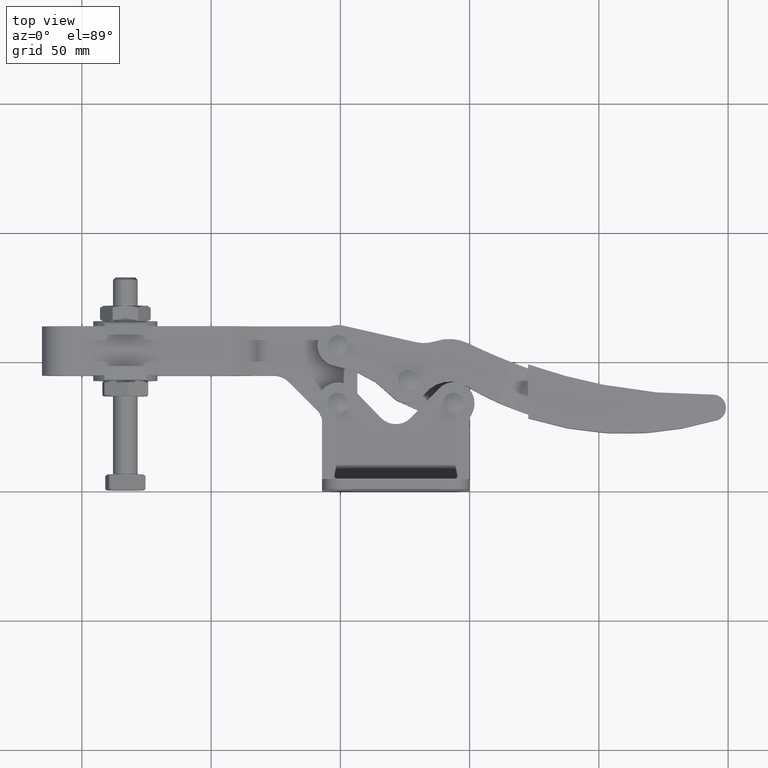
[diagram: clean part render]
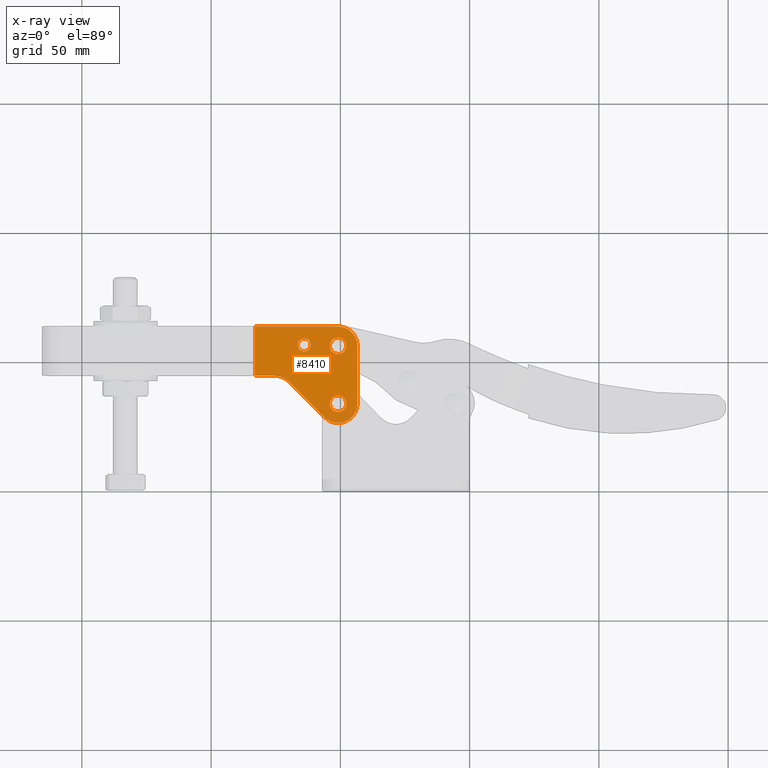
[diagram: x-ray — body ghosted, one internal face saturated and labeled with its STEP entity id]
A machine part, top view, then the same camera in x-ray: the body is ghosted and one INTERNAL B-rep face — a face not visible from any outside direction — is saturated and labeled: STEP entity #8410.
In plain terms, the highlighted planar face has unit normal (0, 0, -1).
Its self-contained STEP definition (entity closure, byte-faithful):
#55 = LINE ( 'NONE', #771, #1312 ) ;
#128 = EDGE_CURVE ( 'NONE', #696, #2942, #9932, .T. ) ;
#317 = EDGE_CURVE ( 'NONE', #2942, #696, #8486, .T. ) ;
#346 = CARTESIAN_POINT ( 'NONE',  ( -50.90001517254349000, 26.10000000001645000, -4.000050000002044500 ) ) ;
#403 = VECTOR ( 'NONE', #9886, 1000.000000000000100 ) ;
#570 = VERTEX_POINT ( 'NONE', #5914 ) ;
#577 = ORIENTED_EDGE ( 'NONE', *, *, #9503, .F. ) ;
#686 = DIRECTION ( 'NONE',  ( 2.023005870432971800E-006, 0.9999999999979537500, 0.0000000000000000000 ) ) ;
#696 = VERTEX_POINT ( 'NONE', #10687 ) ;
#771 = CARTESIAN_POINT ( 'NONE',  ( -165.3999781513020900, 44.40023163415047200, -4.000050000006385000 ) ) ;
#799 = AXIS2_PLACEMENT_3D ( 'NONE', #3712, #9637, #4571 ) ;
#903 = CARTESIAN_POINT ( 'NONE',  ( -63.99995407773911900, 56.30002650133089000, -4.000050000002540100 ) ) ;
#1072 = CIRCLE ( 'NONE', #799, 3.175000000000152100 ) ;
#1312 = VECTOR ( 'NONE', #9199, 1000.000000000000100 ) ;
#1314 = EDGE_CURVE ( 'NONE', #570, #5095, #2023, .T. ) ;
#1368 = FACE_BOUND ( 'NONE', #9410, .T. ) ;
#1431 = CARTESIAN_POINT ( 'NONE',  ( -50.89999999999953700, 33.60000000000069800, -4.000050000002044500 ) ) ;
#1560 = DIRECTION ( 'NONE',  ( -3.792184384588090100E-014, -2.488427435205626500E-017, 1.000000000000000000 ) ) ;
#1680 = AXIS2_PLACEMENT_3D ( 'NONE', #7258, #2171, #8085 ) ;
#1822 = CARTESIAN_POINT ( 'NONE',  ( -39.51663489087625400, 26.09997697137130500, -4.000050000001612800 ) ) ;
#1853 = CIRCLE ( 'NONE', #6130, 3.175000000000596200 ) ;
#2023 = CIRCLE ( 'NONE', #8053, 3.175000000000596200 ) ;
#2025 = VECTOR ( 'NONE', #8582, 1000.000000000000100 ) ;
#2149 = EDGE_LOOP ( 'NONE', ( #7916, #7611, #4400, #8308, #6256, #4423, #4198, #8778, #6539 ) ) ;
#2171 = DIRECTION ( 'NONE',  ( -3.792184384588090100E-014, -2.488427435205626500E-017, 1.000000000000000000 ) ) ;
#2228 = DIRECTION ( 'NONE',  ( -0.9999999999979536400, 2.023005871508876400E-006, -3.792184379546225800E-014 ) ) ;
#2248 = CARTESIAN_POINT ( 'NONE',  ( -50.89993971442411400, 63.39999999993944600, -4.000050000002043600 ) ) ;
#2251 = CARTESIAN_POINT ( 'NONE',  ( -43.40001517255885200, 26.09998482747173700, -4.000050000001759400 ) ) ;
#2261 = DIRECTION ( 'NONE',  ( 2.023005871154668400E-006, 0.9999999999979536400, 0.0000000000000000000 ) ) ;
#2268 = EDGE_CURVE ( 'NONE', #4261, #7058, #2657, .T. ) ;
#2282 = LINE ( 'NONE', #3503, #2025 ) ;
#2375 = AXIS2_PLACEMENT_3D ( 'NONE', #1431, #7367, #2261 ) ;
#2406 = AXIS2_PLACEMENT_3D ( 'NONE', #1822, #2661, #8606 ) ;
#2642 = LINE ( 'NONE', #2251, #403 ) ;
#2657 = CIRCLE ( 'NONE', #2375, 7.499999999999595900 ) ;
#2661 = DIRECTION ( 'NONE',  ( 3.792184384588089500E-014, 2.488427435205626200E-017, -1.000000000000000000 ) ) ;
#2929 = VERTEX_POINT ( 'NONE', #2248 ) ;
#2942 = VERTEX_POINT ( 'NONE', #9061 ) ;
#3020 = CIRCLE ( 'NONE', #1680, 7.500000000000060400 ) ;
#3221 = CARTESIAN_POINT ( 'NONE',  ( -69.96343885898414800, 42.05689281495847400, -4.000050000002766600 ) ) ;
#3429 = EDGE_CURVE ( 'NONE', #4783, #3866, #5687, .T. ) ;
#3465 = VECTOR ( 'NONE', #2228, 1000.000000000000100 ) ;
#3503 = CARTESIAN_POINT ( 'NONE',  ( -83.00009926338675800, 26.10006493867436800, -4.000050000003261300 ) ) ;
#3545 = CARTESIAN_POINT ( 'NONE',  ( -50.89999999999953700, 33.60000000000069800, -4.000050000002044500 ) ) ;
#3605 = FACE_BOUND ( 'NONE', #4650, .T. ) ;
#3712 = CARTESIAN_POINT ( 'NONE',  ( -50.89995488696815300, 55.89999999995472300, -4.000050000002043600 ) ) ;
#3840 = EDGE_CURVE ( 'NONE', #10237, #2929, #3020, .T. ) ;
#3862 = CARTESIAN_POINT ( 'NONE',  ( -47.72495488696800700, 55.89999999995472300, -4.000050000001922800 ) ) ;
#3866 = VERTEX_POINT ( 'NONE', #3862 ) ;
#3944 = DIRECTION ( 'NONE',  ( -3.792184384588090100E-014, -2.488427435205626500E-017, 1.000000000000000000 ) ) ;
#4177 = CARTESIAN_POINT ( 'NONE',  ( -83.00002380526774500, 63.40006493859803500, -4.000050000003258600 ) ) ;
#4198 = ORIENTED_EDGE ( 'NONE', *, *, #10800, .F. ) ;
#4261 = VERTEX_POINT ( 'NONE', #346 ) ;
#4383 = DIRECTION ( 'NONE',  ( 2.023005870432971800E-006, 0.9999999999979537500, 0.0000000000000000000 ) ) ;
#4400 = ORIENTED_EDGE ( 'NONE', *, *, #5981, .T. ) ;
#4423 = ORIENTED_EDGE ( 'NONE', *, *, #2268, .T. ) ;
#4426 = CARTESIAN_POINT ( 'NONE',  ( -75.62028836826831900, 44.40005000931098100, -4.000050000002980600 ) ) ;
#4562 = CARTESIAN_POINT ( 'NONE',  ( -75.62030455231527500, 36.40005000932582400, -4.000050000002980600 ) ) ;
#4571 = DIRECTION ( 'NONE',  ( 2.023005870433254700E-006, 0.9999999999979537500, 0.0000000000000000000 ) ) ;
#4650 = EDGE_LOOP ( 'NONE', ( #577, #10369 ) ) ;
#4668 = AXIS2_PLACEMENT_3D ( 'NONE', #4562, #10479, #5427 ) ;
#4731 = CIRCLE ( 'NONE', #4668, 8.000000000001527700 ) ;
#4765 = VERTEX_POINT ( 'NONE', #5313 ) ;
#4783 = VERTEX_POINT ( 'NONE', #5354 ) ;
#4828 = ORIENTED_EDGE ( 'NONE', *, *, #3429, .F. ) ;
#5056 = EDGE_CURVE ( 'NONE', #4765, #4261, #6036, .T. ) ;
#5095 = VERTEX_POINT ( 'NONE', #10869 ) ;
#5313 = CARTESIAN_POINT ( 'NONE',  ( -56.20331158749574700, 28.29670986972097100, -4.000050000002245200 ) ) ;
#5354 = CARTESIAN_POINT ( 'NONE',  ( -54.07495488696830700, 55.89999999995472300, -4.000050000002163500 ) ) ;
#5427 = DIRECTION ( 'NONE',  ( 2.023005872195007400E-006, 0.9999999999979537500, 0.0000000000000000000 ) ) ;
#5537 = AXIS2_PLACEMENT_3D ( 'NONE', #6647, #1560, #7498 ) ;
#5687 = CIRCLE ( 'NONE', #7994, 3.175000000000152100 ) ;
#5729 = CARTESIAN_POINT ( 'NONE',  ( -43.39995488698365700, 55.89998482741069100, -4.000050000001758500 ) ) ;
#5769 = EDGE_CURVE ( 'NONE', #8013, #8012, #55, .T. ) ;
#5779 = CARTESIAN_POINT ( 'NONE',  ( -50.89999999999953700, 33.60000000000069800, -4.000050000002044500 ) ) ;
#5914 = CARTESIAN_POINT ( 'NONE',  ( -54.07500000000013100, 33.60000000000069800, -4.000050000002164400 ) ) ;
#5981 = EDGE_CURVE ( 'NONE', #8012, #9276, #4731, .T. ) ;
#6036 = CIRCLE ( 'NONE', #5537, 7.499999999999595900 ) ;
#6130 = AXIS2_PLACEMENT_3D ( 'NONE', #3545, #9466, #4383 ) ;
#6136 = AXIS2_PLACEMENT_3D ( 'NONE', #9764, #8918, #10619 ) ;
#6250 = LINE ( 'NONE', #8295, #10461 ) ;
#6256 = ORIENTED_EDGE ( 'NONE', *, *, #5056, .T. ) ;
#6291 = EDGE_LOOP ( 'NONE', ( #7845, #4828 ) ) ;
#6539 = ORIENTED_EDGE ( 'NONE', *, *, #8604, .T. ) ;
#6647 = CARTESIAN_POINT ( 'NONE',  ( -50.89999999999953700, 33.60000000000069800, -4.000050000002044500 ) ) ;
#7058 = VERTEX_POINT ( 'NONE', #7890 ) ;
#7258 = CARTESIAN_POINT ( 'NONE',  ( -50.89995488696815300, 55.89999999995472300, -4.000050000002043600 ) ) ;
#7367 = DIRECTION ( 'NONE',  ( -3.792184384588090100E-014, -2.488427435205626500E-017, 1.000000000000000000 ) ) ;
#7498 = DIRECTION ( 'NONE',  ( 2.023005871154668400E-006, 0.9999999999979536400, 0.0000000000000000000 ) ) ;
#7611 = ORIENTED_EDGE ( 'NONE', *, *, #5769, .T. ) ;
#7845 = ORIENTED_EDGE ( 'NONE', *, *, #9657, .F. ) ;
#7890 = CARTESIAN_POINT ( 'NONE',  ( -43.40000000001481300, 33.59998482745665900, -4.000050000001759400 ) ) ;
#7916 = ORIENTED_EDGE ( 'NONE', *, *, #7951, .T. ) ;
#7942 = DIRECTION ( 'NONE',  ( 2.023005873930153100E-006, 0.9999999999979536400, 0.0000000000000000000 ) ) ;
#7951 = EDGE_CURVE ( 'NONE', #10351, #8013, #2282, .T. ) ;
#7994 = AXIS2_PLACEMENT_3D ( 'NONE', #9001, #3944, #9866 ) ;
#8012 = VERTEX_POINT ( 'NONE', #4426 ) ;
#8013 = VERTEX_POINT ( 'NONE', #10338 ) ;
#8053 = AXIS2_PLACEMENT_3D ( 'NONE', #5779, #10825, #686 ) ;
#8085 = DIRECTION ( 'NONE',  ( 2.023005871154543400E-006, 0.9999999999979537500, 0.0000000000000000000 ) ) ;
#8119 = FACE_BOUND ( 'NONE', #6291, .T. ) ;
#8182 = AXIS2_PLACEMENT_3D ( 'NONE', #903, #10113, #7942 ) ;
#8295 = CARTESIAN_POINT ( 'NONE',  ( -69.96343885898414800, 42.05689281495847400, -4.000050000002766600 ) ) ;
#8308 = ORIENTED_EDGE ( 'NONE', *, *, #9287, .T. ) ;
#8392 = FACE_OUTER_BOUND ( 'NONE', #2149, .T. ) ;
#8410 = ADVANCED_FACE ( 'NONE', ( #8119, #3605, #8392, #1368 ), #9402, .F. ) ;
#8486 = CIRCLE ( 'NONE', #8182, 2.499999999999955600 ) ;
#8582 = DIRECTION ( 'NONE',  ( -2.023005871480253500E-006, -0.9999999999979536400, -2.496099046476291200E-017 ) ) ;
#8604 = EDGE_CURVE ( 'NONE', #2929, #10351, #10219, .T. ) ;
#8606 = DIRECTION ( 'NONE',  ( 2.023005871480253500E-006, 0.9999999999979536400, 2.496099046476291200E-017 ) ) ;
#8778 = ORIENTED_EDGE ( 'NONE', *, *, #3840, .T. ) ;
#8806 = ORIENTED_EDGE ( 'NONE', *, *, #317, .F. ) ;
#8918 = DIRECTION ( 'NONE',  ( -3.792184384588090100E-014, -2.488427435205626500E-017, 1.000000000000000000 ) ) ;
#9001 = CARTESIAN_POINT ( 'NONE',  ( -50.89995488696815300, 55.89999999995472300, -4.000050000002043600 ) ) ;
#9061 = CARTESIAN_POINT ( 'NONE',  ( -61.49995407774427700, 56.30002144381621300, -4.000050000002445900 ) ) ;
#9199 = DIRECTION ( 'NONE',  ( 0.9999999999979536400, -2.023005870746017800E-006, 3.792184379546225800E-014 ) ) ;
#9276 = VERTEX_POINT ( 'NONE', #3221 ) ;
#9287 = EDGE_CURVE ( 'NONE', #9276, #4765, #6250, .T. ) ;
#9402 = PLANE ( 'NONE',  #2406 ) ;
#9410 = EDGE_LOOP ( 'NONE', ( #9539, #8806 ) ) ;
#9466 = DIRECTION ( 'NONE',  ( -3.792184384588090100E-014, -2.488427435205626500E-017, 1.000000000000000000 ) ) ;
#9503 = EDGE_CURVE ( 'NONE', #5095, #570, #1853, .T. ) ;
#9539 = ORIENTED_EDGE ( 'NONE', *, *, #128, .F. ) ;
#9637 = DIRECTION ( 'NONE',  ( -3.792184384588090100E-014, -2.488427435205626500E-017, 1.000000000000000000 ) ) ;
#9657 = EDGE_CURVE ( 'NONE', #3866, #4783, #1072, .T. ) ;
#9764 = CARTESIAN_POINT ( 'NONE',  ( -63.99995407773911900, 56.30002650133089000, -4.000050000002540100 ) ) ;
#9809 = CARTESIAN_POINT ( 'NONE',  ( -39.51655943275724800, 63.39997697129429400, -4.000050000001611900 ) ) ;
#9866 = DIRECTION ( 'NONE',  ( 2.023005870433254700E-006, 0.9999999999979537500, 0.0000000000000000000 ) ) ;
#9886 = DIRECTION ( 'NONE',  ( -2.023005871480253500E-006, -0.9999999999979536400, -2.496099046476291200E-017 ) ) ;
#9932 = CIRCLE ( 'NONE', #6136, 2.499999999999955600 ) ;
#9978 = DIRECTION ( 'NONE',  ( 0.7071053507039490900, -0.7071082116662521500, 2.679714281724630800E-014 ) ) ;
#10113 = DIRECTION ( 'NONE',  ( -3.792184384588090100E-014, -2.488427435205626500E-017, 1.000000000000000000 ) ) ;
#10219 = LINE ( 'NONE', #9809, #3465 ) ;
#10237 = VERTEX_POINT ( 'NONE', #5729 ) ;
#10338 = CARTESIAN_POINT ( 'NONE',  ( -83.00006224237932900, 44.40006493863683800, -4.000050000003262200 ) ) ;
#10351 = VERTEX_POINT ( 'NONE', #4177 ) ;
#10369 = ORIENTED_EDGE ( 'NONE', *, *, #1314, .F. ) ;
#10461 = VECTOR ( 'NONE', #9978, 1000.000000000000000 ) ;
#10479 = DIRECTION ( 'NONE',  ( 3.792184384588090100E-014, 2.488427435205626500E-017, -1.000000000000000000 ) ) ;
#10619 = DIRECTION ( 'NONE',  ( 2.023005873930153100E-006, 0.9999999999979536400, 0.0000000000000000000 ) ) ;
#10687 = CARTESIAN_POINT ( 'NONE',  ( -66.49995407773396000, 56.30003155884556800, -4.000050000002635100 ) ) ;
#10800 = EDGE_CURVE ( 'NONE', #10237, #7058, #2642, .T. ) ;
#10825 = DIRECTION ( 'NONE',  ( -3.792184384588090100E-014, -2.488427435205626500E-017, 1.000000000000000000 ) ) ;
#10869 = CARTESIAN_POINT ( 'NONE',  ( -47.72499999999894300, 33.60000000000069800, -4.000050000001923700 ) ) ;